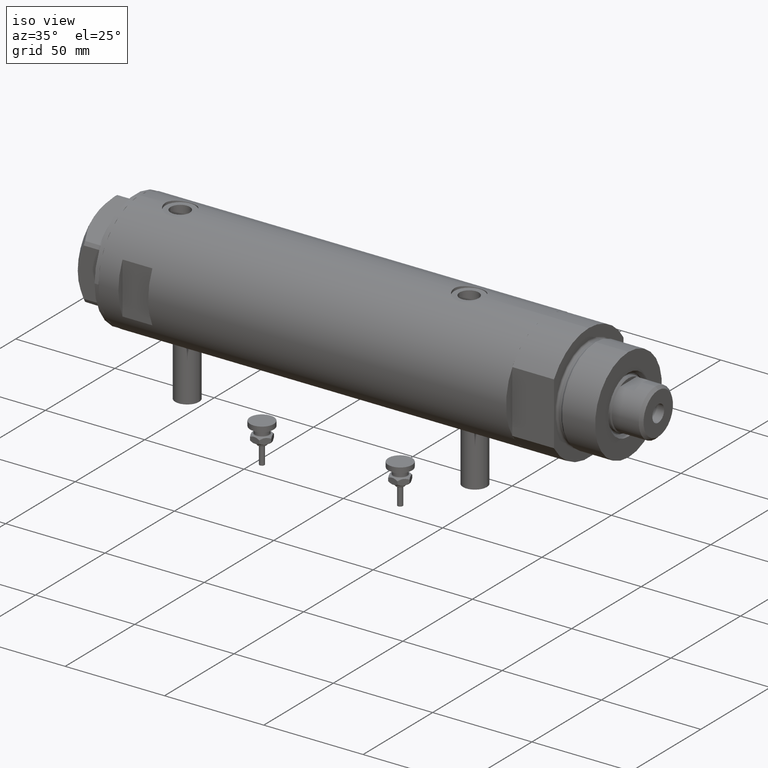
[diagram: clean part render]
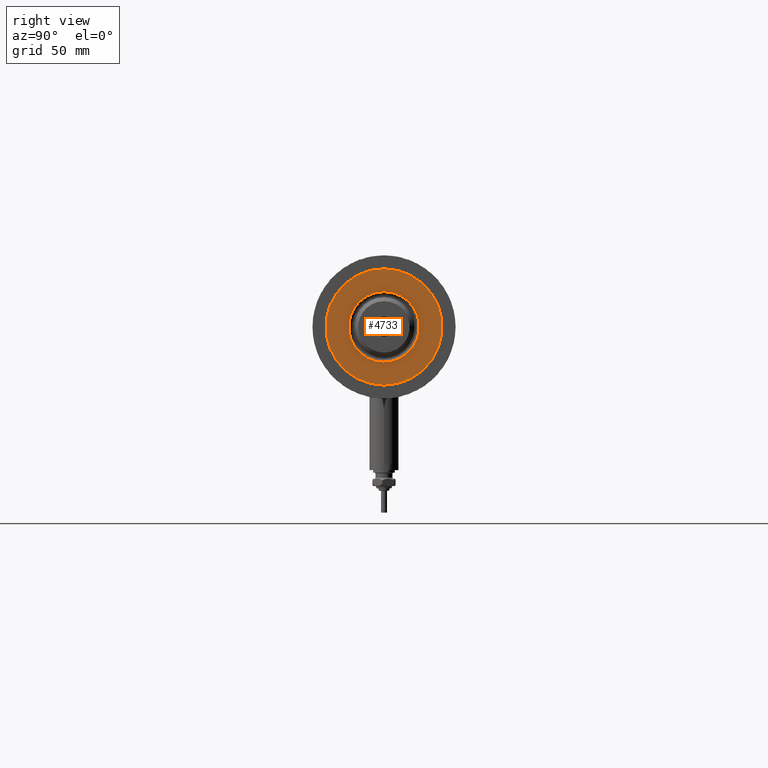
[diagram: tour spotlight — one face highlighted and labeled with its STEP entity id]
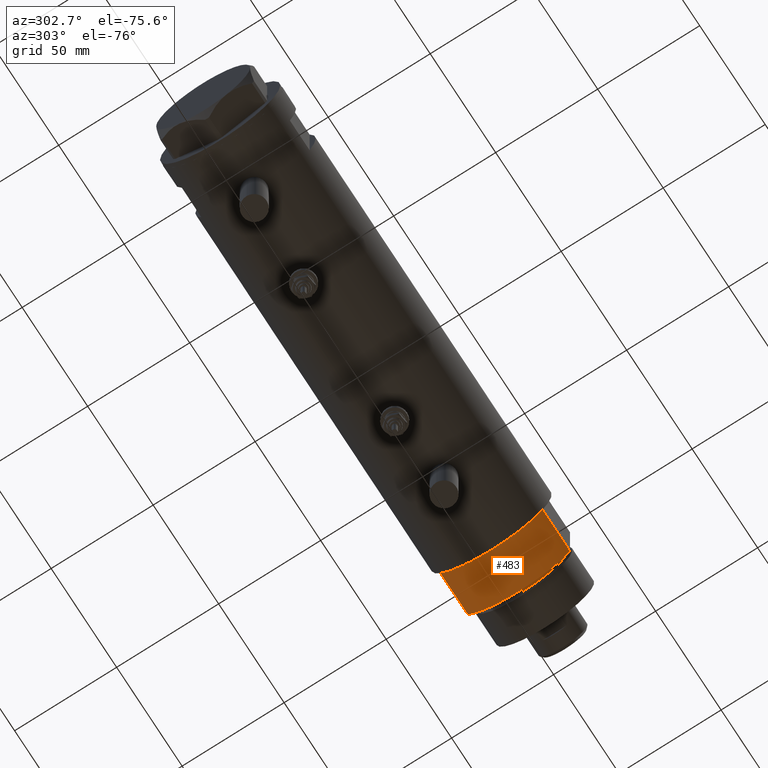
[diagram: tour spotlight — one face highlighted and labeled with its STEP entity id]
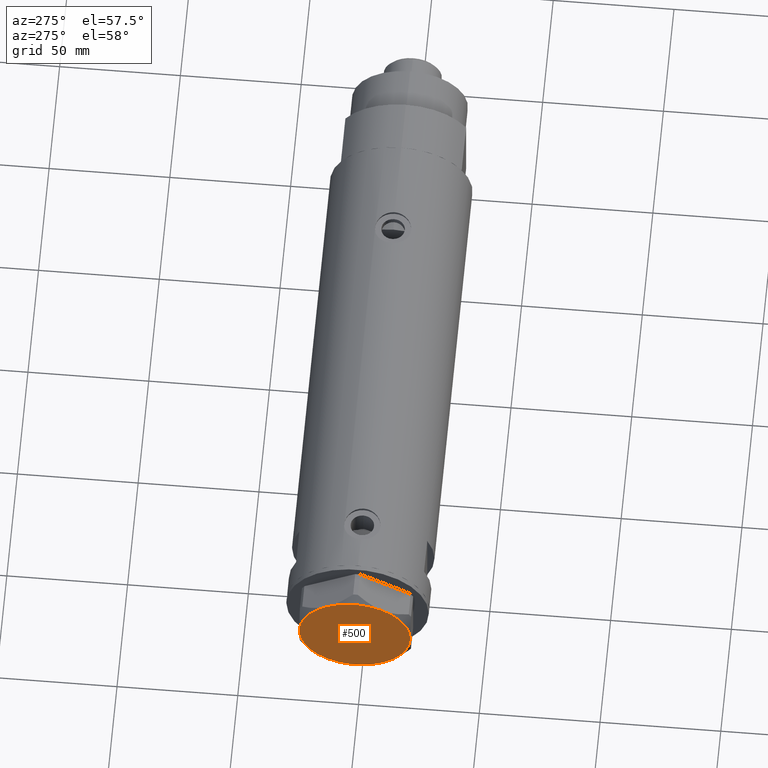
[diagram: tour spotlight — one face highlighted and labeled with its STEP entity id]
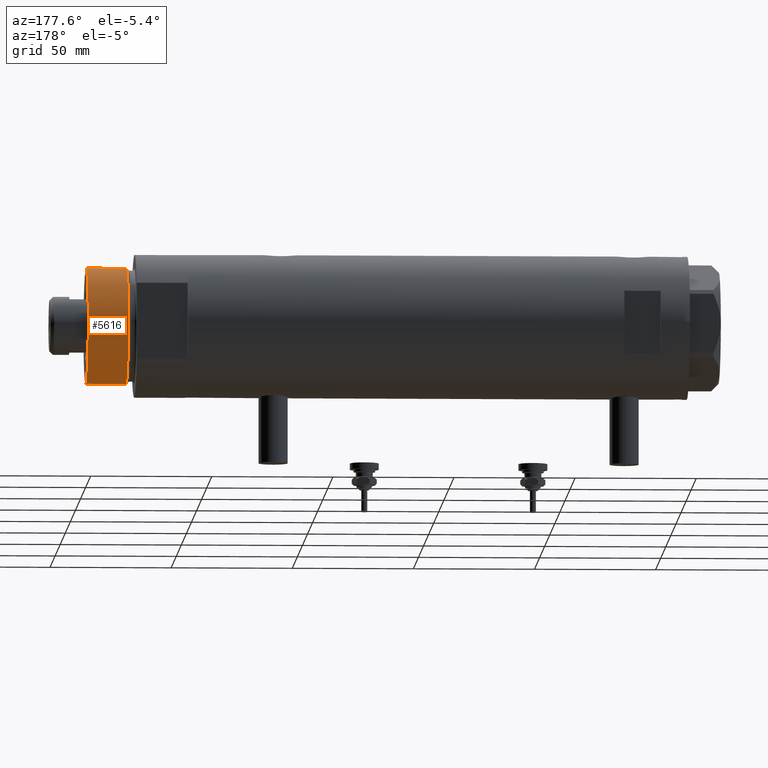
[diagram: tour spotlight — one face highlighted and labeled with its STEP entity id]
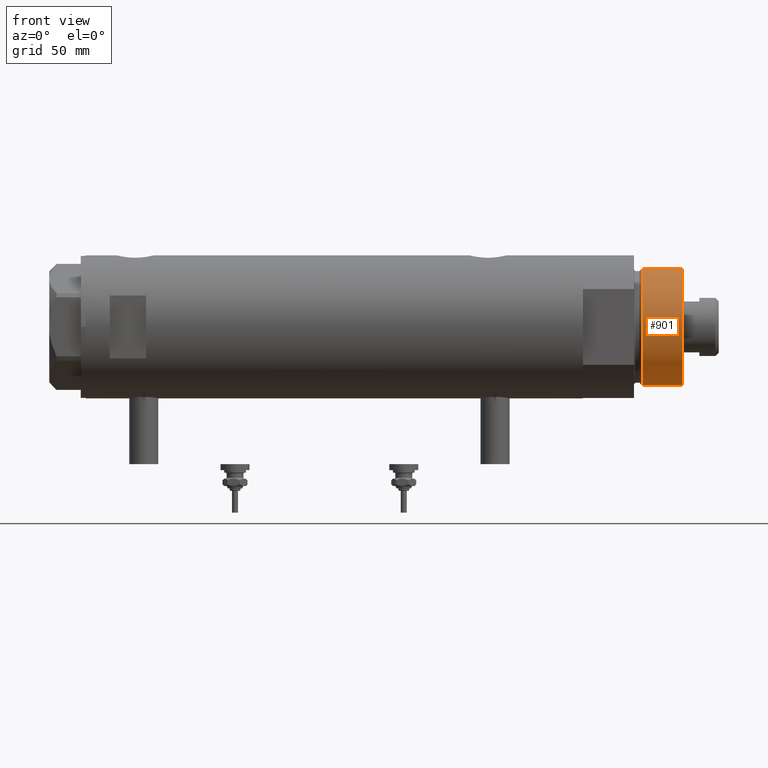
[diagram: tour spotlight — one face highlighted and labeled with its STEP entity id]
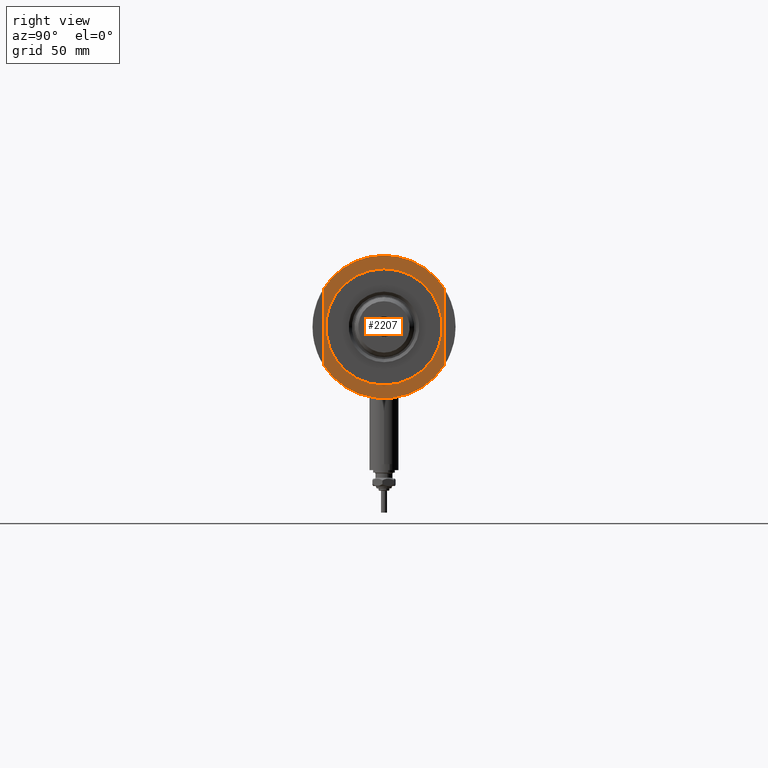
[diagram: tour spotlight — one face highlighted and labeled with its STEP entity id]
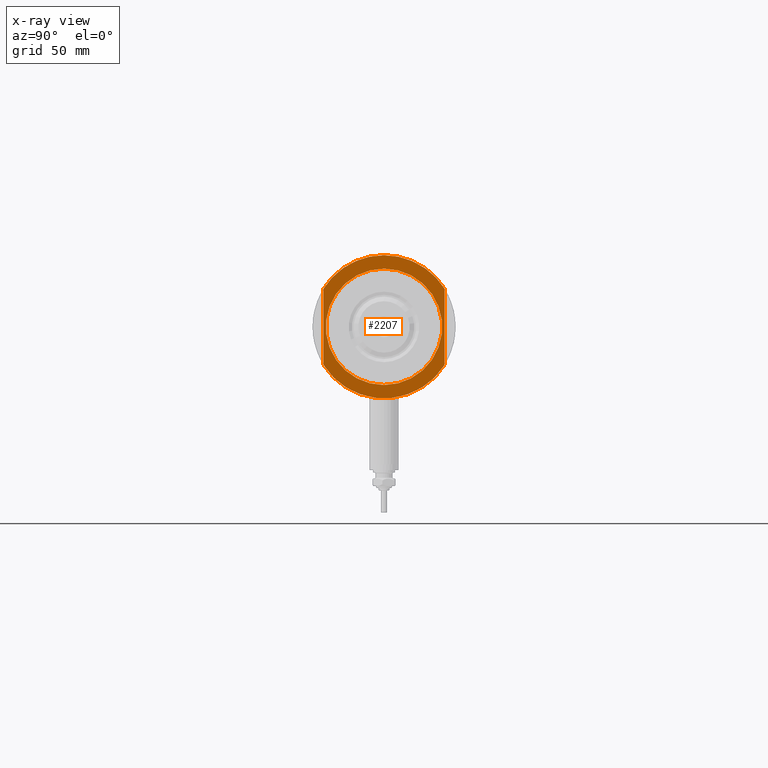
[diagram: x-ray of the same camera — body ghosted, this tour face saturated]
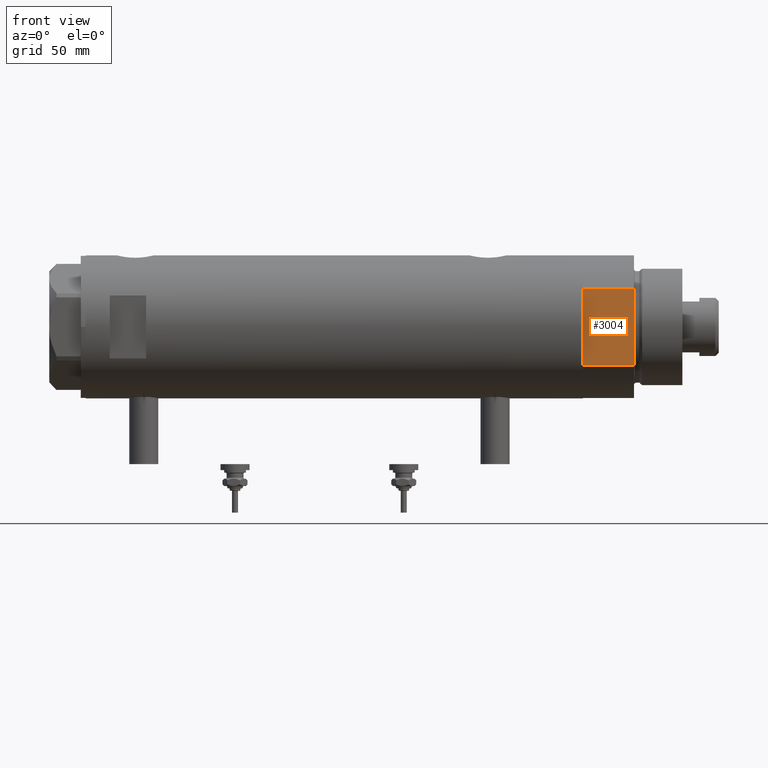
[diagram: tour spotlight — one face highlighted and labeled with its STEP entity id]
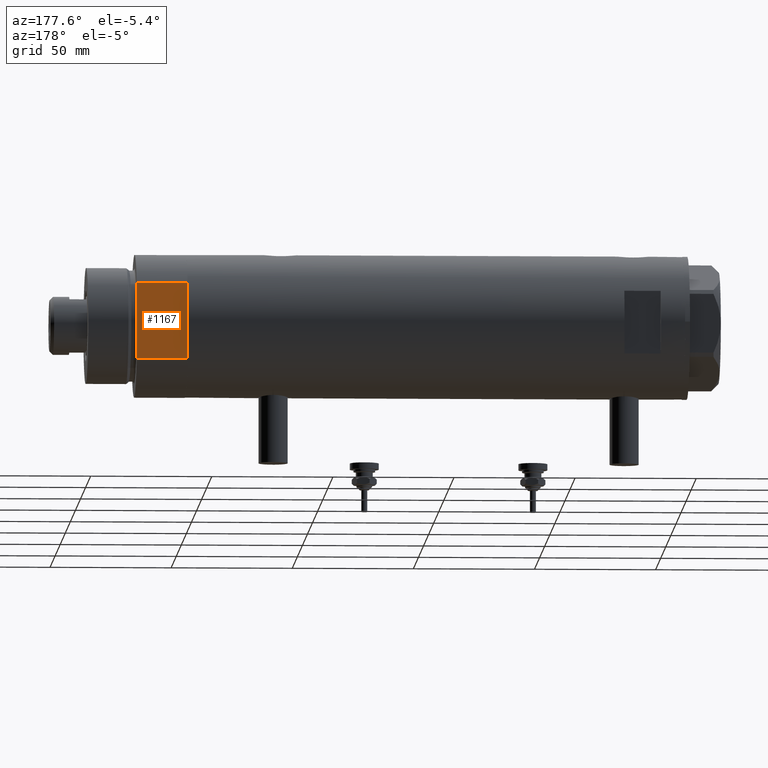
[diagram: tour spotlight — one face highlighted and labeled with its STEP entity id]
A machine part: a face-by-face anatomy tour. The part has 212 B-rep faces; the first image is the clean iso view, then the 8 largest visible faces are spotlighted one at a time (largest first), each with its STEP entity span.

Face 1 — right view, entity #4733. In plain terms, the highlighted planar face has unit normal (1, 0, -0).
Definition (entity closure, byte-faithful):
#137 = FACE_OUTER_BOUND ( 'NONE', #900, .T. ) ;
#231 = CARTESIAN_POINT ( 'NONE',  ( 14.54999999999997939, 0.000000000000000000, 41.00000000000000000 ) ) ;
#433 = CARTESIAN_POINT ( 'NONE',  ( 0.000000000000000000, 0.000000000000000000, 41.00000000000000000 ) ) ;
#721 = EDGE_CURVE ( 'NONE', #3402, #3069, #895, .T. ) ;
#787 = CARTESIAN_POINT ( 'NONE',  ( 0.000000000000000000, 0.000000000000000000, 41.00000000000000000 ) ) ;
#849 = AXIS2_PLACEMENT_3D ( 'NONE', #2028, #3356, #5190 ) ;
#886 = ORIENTED_EDGE ( 'NONE', *, *, #5399, .T. ) ;
#895 = CIRCLE ( 'NONE', #1371, 14.54999999999997939 ) ;
#900 = EDGE_LOOP ( 'NONE', ( #5566, #886 ) ) ;
#1030 = CARTESIAN_POINT ( 'NONE',  ( 0.000000000000000000, 0.000000000000000000, 41.00000000000000000 ) ) ;
#1311 = AXIS2_PLACEMENT_3D ( 'NONE', #787, #1346, #3486 ) ;
#1346 = DIRECTION ( 'NONE',  ( -0.000000000000000000, -0.000000000000000000, -1.000000000000000000 ) ) ;
#1371 = AXIS2_PLACEMENT_3D ( 'NONE', #433, #5426, #4446 ) ;
#1446 = DIRECTION ( 'NONE',  ( 1.000000000000000000, 0.000000000000000000, 0.000000000000000000 ) ) ;
#1588 = ORIENTED_EDGE ( 'NONE', *, *, #721, .T. ) ;
#1760 = VERTEX_POINT ( 'NONE', #3172 ) ;
#1881 = DIRECTION ( 'NONE',  ( 0.000000000000000000, 0.000000000000000000, 1.000000000000000000 ) ) ;
#1944 = PLANE ( 'NONE',  #849 ) ;
#2014 = DIRECTION ( 'NONE',  ( 0.000000000000000000, 0.000000000000000000, 1.000000000000000000 ) ) ;
#2028 = CARTESIAN_POINT ( 'NONE',  ( 0.000000000000000000, 0.000000000000000000, 41.00000000000000000 ) ) ;
#2602 = AXIS2_PLACEMENT_3D ( 'NONE', #1030, #1881, #1446 ) ;
#2736 = CARTESIAN_POINT ( 'NONE',  ( -14.54999999999997939, 1.781861092759396721E-15, 41.00000000000000000 ) ) ;
#2787 = EDGE_CURVE ( 'NONE', #1760, #5433, #3306, .T. ) ;
#3020 = CIRCLE ( 'NONE', #1311, 14.54999999999997939 ) ;
#3069 = VERTEX_POINT ( 'NONE', #231 ) ;
#3172 = CARTESIAN_POINT ( 'NONE',  ( -24.00000000000000355, 0.000000000000000000, 41.00000000000000000 ) ) ;
#3214 = EDGE_CURVE ( 'NONE', #3069, #3402, #3020, .T. ) ;
#3306 = CIRCLE ( 'NONE', #5790, 24.00000000000000355 ) ;
#3356 = DIRECTION ( 'NONE',  ( 0.000000000000000000, 0.000000000000000000, 1.000000000000000000 ) ) ;
#3370 = CARTESIAN_POINT ( 'NONE',  ( 0.000000000000000000, 0.000000000000000000, 41.00000000000000000 ) ) ;
#3400 = DIRECTION ( 'NONE',  ( 1.000000000000000000, 0.000000000000000000, 0.000000000000000000 ) ) ;
#3402 = VERTEX_POINT ( 'NONE', #2736 ) ;
#3414 = CARTESIAN_POINT ( 'NONE',  ( 24.00000000000000355, 2.939152317953648289E-15, 41.00000000000000000 ) ) ;
#3486 = DIRECTION ( 'NONE',  ( 1.000000000000000000, 0.000000000000000000, 0.000000000000000000 ) ) ;
#3604 = EDGE_LOOP ( 'NONE', ( #4656, #1588 ) ) ;
#4207 = FACE_BOUND ( 'NONE', #3604, .T. ) ;
#4446 = DIRECTION ( 'NONE',  ( 1.000000000000000000, 0.000000000000000000, 0.000000000000000000 ) ) ;
#4656 = ORIENTED_EDGE ( 'NONE', *, *, #3214, .T. ) ;
#4733 = ADVANCED_FACE ( 'NONE', ( #4207, #137 ), #1944, .T. ) ;
#5190 = DIRECTION ( 'NONE',  ( 1.000000000000000000, 0.000000000000000000, -0.000000000000000000 ) ) ;
#5207 = CIRCLE ( 'NONE', #2602, 24.00000000000000355 ) ;
#5399 = EDGE_CURVE ( 'NONE', #5433, #1760, #5207, .T. ) ;
#5426 = DIRECTION ( 'NONE',  ( -0.000000000000000000, -0.000000000000000000, -1.000000000000000000 ) ) ;
#5433 = VERTEX_POINT ( 'NONE', #3414 ) ;
#5566 = ORIENTED_EDGE ( 'NONE', *, *, #2787, .T. ) ;
#5790 = AXIS2_PLACEMENT_3D ( 'NONE', #3370, #2014, #3400 ) ;

Face 2 — auxiliary view, entity #483. In plain terms, the highlighted cylindrical surface (partial cylindrical patch) has radius 29.5 mm, axis along (-1, -0, 0).
Definition (entity closure, byte-faithful):
#160 = VECTOR ( 'NONE', #4064, 1000.000000000000000 ) ;
#483 = ADVANCED_FACE ( 'NONE', ( #4731 ), #2845, .T. ) ;
#1051 = LINE ( 'NONE', #3321, #160 ) ;
#1112 = CARTESIAN_POINT ( 'NONE',  ( 15.66045976336583401, 25.00000000000000000, 0.000000000000000000 ) ) ;
#1363 = CARTESIAN_POINT ( 'NONE',  ( 15.66045976336583045, -25.00000000000000000, 21.00000000000000355 ) ) ;
#1470 = AXIS2_PLACEMENT_3D ( 'NONE', #2033, #3852, #3421 ) ;
#1489 = EDGE_CURVE ( 'NONE', #5751, #1699, #1051, .T. ) ;
#1642 = CARTESIAN_POINT ( 'NONE',  ( 15.66045976336583045, 24.99999999999999645, 20.99999999999999645 ) ) ;
#1699 = VERTEX_POINT ( 'NONE', #1363 ) ;
#2033 = CARTESIAN_POINT ( 'NONE',  ( 0.000000000000000000, 0.000000000000000000, 0.000000000000000000 ) ) ;
#2047 = DIRECTION ( 'NONE',  ( -0.000000000000000000, -0.000000000000000000, 1.000000000000000000 ) ) ;
#2084 = ORIENTED_EDGE ( 'NONE', *, *, #5033, .T. ) ;
#2260 = CIRCLE ( 'NONE', #5908, 29.50000000000000355 ) ;
#2845 = CYLINDRICAL_SURFACE ( 'NONE', #5782, 29.50000000000000355 ) ;
#2849 = CARTESIAN_POINT ( 'NONE',  ( 15.66045976336583401, -25.00000000000000000, 0.000000000000000000 ) ) ;
#3089 = VERTEX_POINT ( 'NONE', #5189 ) ;
#3259 = DIRECTION ( 'NONE',  ( 1.000000000000000000, 0.000000000000000000, 0.000000000000000000 ) ) ;
#3321 = CARTESIAN_POINT ( 'NONE',  ( 15.66045976336583401, -25.00000000000000000, 0.000000000000000000 ) ) ;
#3324 = CARTESIAN_POINT ( 'NONE',  ( 0.000000000000000000, 0.000000000000000000, 21.00000000000000000 ) ) ;
#3383 = CIRCLE ( 'NONE', #1470, 29.50000000000000355 ) ;
#3421 = DIRECTION ( 'NONE',  ( 1.000000000000000000, 0.000000000000000000, 0.000000000000000000 ) ) ;
#3458 = ORIENTED_EDGE ( 'NONE', *, *, #3548, .T. ) ;
#3459 = ORIENTED_EDGE ( 'NONE', *, *, #1489, .F. ) ;
#3548 = EDGE_CURVE ( 'NONE', #3089, #4299, #5239, .T. ) ;
#3852 = DIRECTION ( 'NONE',  ( 0.000000000000000000, 0.000000000000000000, 1.000000000000000000 ) ) ;
#3855 = EDGE_LOOP ( 'NONE', ( #5416, #3459, #2084, #3458 ) ) ;
#4064 = DIRECTION ( 'NONE',  ( -0.000000000000000000, -0.000000000000000000, 1.000000000000000000 ) ) ;
#4299 = VERTEX_POINT ( 'NONE', #1642 ) ;
#4651 = VECTOR ( 'NONE', #2047, 1000.000000000000000 ) ;
#4695 = EDGE_CURVE ( 'NONE', #1699, #4299, #2260, .T. ) ;
#4700 = DIRECTION ( 'NONE',  ( -1.000000000000000000, 0.000000000000000000, 0.000000000000000000 ) ) ;
#4709 = DIRECTION ( 'NONE',  ( 0.000000000000000000, 0.000000000000000000, 1.000000000000000000 ) ) ;
#4731 = FACE_OUTER_BOUND ( 'NONE', #3855, .T. ) ;
#5033 = EDGE_CURVE ( 'NONE', #5751, #3089, #3383, .T. ) ;
#5152 = DIRECTION ( 'NONE',  ( -0.000000000000000000, -0.000000000000000000, -1.000000000000000000 ) ) ;
#5189 = CARTESIAN_POINT ( 'NONE',  ( 15.66045976336582690, 25.00000000000000000, 0.000000000000000000 ) ) ;
#5239 = LINE ( 'NONE', #1112, #4651 ) ;
#5416 = ORIENTED_EDGE ( 'NONE', *, *, #4695, .F. ) ;
#5692 = CARTESIAN_POINT ( 'NONE',  ( 0.000000000000000000, 0.000000000000000000, 21.00000000000000000 ) ) ;
#5751 = VERTEX_POINT ( 'NONE', #2849 ) ;
#5782 = AXIS2_PLACEMENT_3D ( 'NONE', #3324, #5152, #4700 ) ;
#5908 = AXIS2_PLACEMENT_3D ( 'NONE', #5692, #4709, #3259 ) ;

Face 3 — auxiliary view, entity #500. In plain terms, the highlighted planar face has unit normal (-1, -0, 0).
Definition (entity closure, byte-faithful):
#111 = VERTEX_POINT ( 'NONE', #1801 ) ;
#166 = CIRCLE ( 'NONE', #5295, 23.00000000000004619 ) ;
#186 = CIRCLE ( 'NONE', #4657, 23.00000000000004619 ) ;
#215 = VERTEX_POINT ( 'NONE', #1585 ) ;
#223 = DIRECTION ( 'NONE',  ( 1.000000000000000000, 0.000000000000000000, 0.000000000000000000 ) ) ;
#253 = CIRCLE ( 'NONE', #2609, 23.00000000000004619 ) ;
#413 = VERTEX_POINT ( 'NONE', #4206 ) ;
#417 = EDGE_CURVE ( 'NONE', #111, #413, #166, .T. ) ;
#449 = DIRECTION ( 'NONE',  ( 1.000000000000000000, 0.000000000000000000, 0.000000000000000000 ) ) ;
#456 = ORIENTED_EDGE ( 'NONE', *, *, #5569, .T. ) ;
#500 = ADVANCED_FACE ( 'NONE', ( #1113 ), #1172, .T. ) ;
#594 = EDGE_LOOP ( 'NONE', ( #456, #5328, #2248, #3937, #3190, #5482 ) ) ;
#729 = DIRECTION ( 'NONE',  ( 0.000000000000000000, 0.000000000000000000, 1.000000000000000000 ) ) ;
#863 = DIRECTION ( 'NONE',  ( 1.000000000000000000, 0.000000000000000000, 0.000000000000000000 ) ) ;
#1049 = VERTEX_POINT ( 'NONE', #4685 ) ;
#1053 = CARTESIAN_POINT ( 'NONE',  ( -11.49999999999990585, -19.91858428704219364, 13.00000000000000000 ) ) ;
#1113 = FACE_OUTER_BOUND ( 'NONE', #594, .T. ) ;
#1119 = AXIS2_PLACEMENT_3D ( 'NONE', #4475, #2108, #2592 ) ;
#1172 = PLANE ( 'NONE',  #4410 ) ;
#1193 = DIRECTION ( 'NONE',  ( 0.000000000000000000, 0.000000000000000000, 1.000000000000000000 ) ) ;
#1438 = EDGE_CURVE ( 'NONE', #3310, #1049, #253, .T. ) ;
#1585 = CARTESIAN_POINT ( 'NONE',  ( 22.99999999999995026, 2.373657066004705010E-13, 13.00000000000000000 ) ) ;
#1801 = CARTESIAN_POINT ( 'NONE',  ( 11.49999999999990408, 19.91858428704219364, 13.00000000000000000 ) ) ;
#2108 = DIRECTION ( 'NONE',  ( 0.000000000000000000, 0.000000000000000000, 1.000000000000000000 ) ) ;
#2135 = CIRCLE ( 'NONE', #1119, 23.00000000000004619 ) ;
#2248 = ORIENTED_EDGE ( 'NONE', *, *, #417, .T. ) ;
#2592 = DIRECTION ( 'NONE',  ( 1.000000000000000000, 0.000000000000000000, 0.000000000000000000 ) ) ;
#2609 = AXIS2_PLACEMENT_3D ( 'NONE', #5499, #3281, #449 ) ;
#3135 = DIRECTION ( 'NONE',  ( 0.000000000000000000, 0.000000000000000000, 1.000000000000000000 ) ) ;
#3190 = ORIENTED_EDGE ( 'NONE', *, *, #4449, .T. ) ;
#3281 = DIRECTION ( 'NONE',  ( 0.000000000000000000, 0.000000000000000000, 1.000000000000000000 ) ) ;
#3310 = VERTEX_POINT ( 'NONE', #1053 ) ;
#3415 = AXIS2_PLACEMENT_3D ( 'NONE', #3605, #3135, #3631 ) ;
#3453 = DIRECTION ( 'NONE',  ( 1.000000000000000000, 0.000000000000000000, -0.000000000000000000 ) ) ;
#3470 = EDGE_CURVE ( 'NONE', #413, #4013, #4647, .T. ) ;
#3605 = CARTESIAN_POINT ( 'NONE',  ( 0.000000000000000000, 0.000000000000000000, 13.00000000000000000 ) ) ;
#3621 = EDGE_CURVE ( 'NONE', #215, #111, #186, .T. ) ;
#3627 = DIRECTION ( 'NONE',  ( 1.000000000000000000, 0.000000000000000000, 0.000000000000000000 ) ) ;
#3631 = DIRECTION ( 'NONE',  ( 1.000000000000000000, 0.000000000000000000, 0.000000000000000000 ) ) ;
#3837 = CARTESIAN_POINT ( 'NONE',  ( 0.000000000000000000, 0.000000000000000000, 13.00000000000000000 ) ) ;
#3842 = CARTESIAN_POINT ( 'NONE',  ( 0.000000000000000000, 0.000000000000000000, 13.00000000000000000 ) ) ;
#3937 = ORIENTED_EDGE ( 'NONE', *, *, #3470, .T. ) ;
#4013 = VERTEX_POINT ( 'NONE', #4883 ) ;
#4206 = CARTESIAN_POINT ( 'NONE',  ( -11.50000000000004441, 19.91858428704211548, 13.00000000000000000 ) ) ;
#4266 = CARTESIAN_POINT ( 'NONE',  ( 0.000000000000000000, 0.000000000000000000, 13.00000000000000000 ) ) ;
#4410 = AXIS2_PLACEMENT_3D ( 'NONE', #4813, #729, #3453 ) ;
#4448 = CIRCLE ( 'NONE', #3415, 23.00000000000004619 ) ;
#4449 = EDGE_CURVE ( 'NONE', #4013, #3310, #4448, .T. ) ;
#4475 = CARTESIAN_POINT ( 'NONE',  ( 0.000000000000000000, 0.000000000000000000, 13.00000000000000000 ) ) ;
#4647 = CIRCLE ( 'NONE', #5232, 23.00000000000004619 ) ;
#4657 = AXIS2_PLACEMENT_3D ( 'NONE', #3837, #5684, #863 ) ;
#4685 = CARTESIAN_POINT ( 'NONE',  ( 11.50000000000018296, -19.91858428704203732, 13.00000000000000000 ) ) ;
#4813 = CARTESIAN_POINT ( 'NONE',  ( 0.000000000000000000, 0.000000000000000000, 13.00000000000000000 ) ) ;
#4883 = CARTESIAN_POINT ( 'NONE',  ( -23.00000000000004619, -8.112498833180673323E-14, 13.00000000000000000 ) ) ;
#5232 = AXIS2_PLACEMENT_3D ( 'NONE', #4266, #1193, #223 ) ;
#5295 = AXIS2_PLACEMENT_3D ( 'NONE', #3842, #5863, #3627 ) ;
#5328 = ORIENTED_EDGE ( 'NONE', *, *, #3621, .T. ) ;
#5482 = ORIENTED_EDGE ( 'NONE', *, *, #1438, .T. ) ;
#5499 = CARTESIAN_POINT ( 'NONE',  ( 0.000000000000000000, 0.000000000000000000, 13.00000000000000000 ) ) ;
#5569 = EDGE_CURVE ( 'NONE', #1049, #215, #2135, .T. ) ;
#5684 = DIRECTION ( 'NONE',  ( 0.000000000000000000, 0.000000000000000000, 1.000000000000000000 ) ) ;
#5863 = DIRECTION ( 'NONE',  ( 0.000000000000000000, 0.000000000000000000, 1.000000000000000000 ) ) ;

Face 4 — auxiliary view, entity #5616. In plain terms, the highlighted cylindrical surface (partial cylindrical patch) has radius 24 mm, axis along (-1, -0, 0).
Definition (entity closure, byte-faithful):
#27 = LINE ( 'NONE', #3661, #2192 ) ;
#56 = AXIS2_PLACEMENT_3D ( 'NONE', #3490, #3920, #4441 ) ;
#323 = CARTESIAN_POINT ( 'NONE',  ( 24.00000000000000355, 2.939152317953648289E-15, 24.37384048104054557 ) ) ;
#392 = EDGE_CURVE ( 'NONE', #5433, #3717, #4780, .T. ) ;
#1030 = CARTESIAN_POINT ( 'NONE',  ( 0.000000000000000000, 0.000000000000000000, 41.00000000000000000 ) ) ;
#1446 = DIRECTION ( 'NONE',  ( 1.000000000000000000, 0.000000000000000000, 0.000000000000000000 ) ) ;
#1528 = EDGE_LOOP ( 'NONE', ( #5378, #1871, #3008, #2579 ) ) ;
#1760 = VERTEX_POINT ( 'NONE', #3172 ) ;
#1871 = ORIENTED_EDGE ( 'NONE', *, *, #392, .T. ) ;
#1881 = DIRECTION ( 'NONE',  ( 0.000000000000000000, 0.000000000000000000, 1.000000000000000000 ) ) ;
#1961 = AXIS2_PLACEMENT_3D ( 'NONE', #2615, #4848, #3893 ) ;
#2192 = VECTOR ( 'NONE', #3253, 1000.000000000000000 ) ;
#2228 = CYLINDRICAL_SURFACE ( 'NONE', #56, 24.00000000000000355 ) ;
#2239 = EDGE_CURVE ( 'NONE', #3717, #3328, #4033, .T. ) ;
#2579 = ORIENTED_EDGE ( 'NONE', *, *, #5761, .F. ) ;
#2602 = AXIS2_PLACEMENT_3D ( 'NONE', #1030, #1881, #1446 ) ;
#2615 = CARTESIAN_POINT ( 'NONE',  ( 0.000000000000000000, 0.000000000000000000, 24.37384048104054557 ) ) ;
#2808 = CARTESIAN_POINT ( 'NONE',  ( -24.00000000000000355, 0.000000000000000000, 24.37384048104054557 ) ) ;
#3008 = ORIENTED_EDGE ( 'NONE', *, *, #2239, .T. ) ;
#3172 = CARTESIAN_POINT ( 'NONE',  ( -24.00000000000000355, 0.000000000000000000, 41.00000000000000000 ) ) ;
#3253 = DIRECTION ( 'NONE',  ( -0.000000000000000000, -0.000000000000000000, -1.000000000000000000 ) ) ;
#3328 = VERTEX_POINT ( 'NONE', #2808 ) ;
#3414 = CARTESIAN_POINT ( 'NONE',  ( 24.00000000000000355, 2.939152317953648289E-15, 41.00000000000000000 ) ) ;
#3446 = CARTESIAN_POINT ( 'NONE',  ( 24.00000000000000355, 2.939152317953648289E-15, 41.00000000000000000 ) ) ;
#3490 = CARTESIAN_POINT ( 'NONE',  ( 0.000000000000000000, 0.000000000000000000, 41.00000000000000000 ) ) ;
#3661 = CARTESIAN_POINT ( 'NONE',  ( -24.00000000000000355, 0.000000000000000000, 41.00000000000000000 ) ) ;
#3717 = VERTEX_POINT ( 'NONE', #323 ) ;
#3893 = DIRECTION ( 'NONE',  ( 1.000000000000000000, 0.000000000000000000, 0.000000000000000000 ) ) ;
#3920 = DIRECTION ( 'NONE',  ( -0.000000000000000000, -0.000000000000000000, -1.000000000000000000 ) ) ;
#4033 = CIRCLE ( 'NONE', #1961, 24.00000000000000355 ) ;
#4407 = FACE_OUTER_BOUND ( 'NONE', #1528, .T. ) ;
#4441 = DIRECTION ( 'NONE',  ( -1.000000000000000000, 0.000000000000000000, 0.000000000000000000 ) ) ;
#4780 = LINE ( 'NONE', #3446, #4826 ) ;
#4826 = VECTOR ( 'NONE', #5626, 1000.000000000000000 ) ;
#4848 = DIRECTION ( 'NONE',  ( -0.000000000000000000, -0.000000000000000000, 1.000000000000000000 ) ) ;
#5207 = CIRCLE ( 'NONE', #2602, 24.00000000000000355 ) ;
#5378 = ORIENTED_EDGE ( 'NONE', *, *, #5399, .F. ) ;
#5399 = EDGE_CURVE ( 'NONE', #5433, #1760, #5207, .T. ) ;
#5433 = VERTEX_POINT ( 'NONE', #3414 ) ;
#5616 = ADVANCED_FACE ( 'NONE', ( #4407 ), #2228, .T. ) ;
#5626 = DIRECTION ( 'NONE',  ( -0.000000000000000000, -0.000000000000000000, -1.000000000000000000 ) ) ;
#5761 = EDGE_CURVE ( 'NONE', #1760, #3328, #27, .T. ) ;

Face 5 — front view, entity #901. In plain terms, the highlighted cylindrical surface (partial cylindrical patch) has radius 24 mm, axis along (-1, -0, 0).
Definition (entity closure, byte-faithful):
#27 = LINE ( 'NONE', #3661, #2192 ) ;
#323 = CARTESIAN_POINT ( 'NONE',  ( 24.00000000000000355, 2.939152317953648289E-15, 24.37384048104054557 ) ) ;
#392 = EDGE_CURVE ( 'NONE', #5433, #3717, #4780, .T. ) ;
#759 = AXIS2_PLACEMENT_3D ( 'NONE', #3901, #1624, #4282 ) ;
#901 = ADVANCED_FACE ( 'NONE', ( #2263 ), #5899, .T. ) ;
#1624 = DIRECTION ( 'NONE',  ( -0.000000000000000000, -0.000000000000000000, 1.000000000000000000 ) ) ;
#1760 = VERTEX_POINT ( 'NONE', #3172 ) ;
#1929 = ORIENTED_EDGE ( 'NONE', *, *, #4960, .T. ) ;
#2014 = DIRECTION ( 'NONE',  ( 0.000000000000000000, 0.000000000000000000, 1.000000000000000000 ) ) ;
#2192 = VECTOR ( 'NONE', #3253, 1000.000000000000000 ) ;
#2263 = FACE_OUTER_BOUND ( 'NONE', #5275, .T. ) ;
#2540 = ORIENTED_EDGE ( 'NONE', *, *, #392, .F. ) ;
#2659 = ORIENTED_EDGE ( 'NONE', *, *, #2787, .F. ) ;
#2707 = CARTESIAN_POINT ( 'NONE',  ( 0.000000000000000000, 0.000000000000000000, 41.00000000000000000 ) ) ;
#2787 = EDGE_CURVE ( 'NONE', #1760, #5433, #3306, .T. ) ;
#2808 = CARTESIAN_POINT ( 'NONE',  ( -24.00000000000000355, 0.000000000000000000, 24.37384048104054557 ) ) ;
#3159 = DIRECTION ( 'NONE',  ( -0.000000000000000000, -0.000000000000000000, -1.000000000000000000 ) ) ;
#3172 = CARTESIAN_POINT ( 'NONE',  ( -24.00000000000000355, 0.000000000000000000, 41.00000000000000000 ) ) ;
#3253 = DIRECTION ( 'NONE',  ( -0.000000000000000000, -0.000000000000000000, -1.000000000000000000 ) ) ;
#3306 = CIRCLE ( 'NONE', #5790, 24.00000000000000355 ) ;
#3328 = VERTEX_POINT ( 'NONE', #2808 ) ;
#3370 = CARTESIAN_POINT ( 'NONE',  ( 0.000000000000000000, 0.000000000000000000, 41.00000000000000000 ) ) ;
#3400 = DIRECTION ( 'NONE',  ( 1.000000000000000000, 0.000000000000000000, 0.000000000000000000 ) ) ;
#3414 = CARTESIAN_POINT ( 'NONE',  ( 24.00000000000000355, 2.939152317953648289E-15, 41.00000000000000000 ) ) ;
#3446 = CARTESIAN_POINT ( 'NONE',  ( 24.00000000000000355, 2.939152317953648289E-15, 41.00000000000000000 ) ) ;
#3661 = CARTESIAN_POINT ( 'NONE',  ( -24.00000000000000355, 0.000000000000000000, 41.00000000000000000 ) ) ;
#3717 = VERTEX_POINT ( 'NONE', #323 ) ;
#3901 = CARTESIAN_POINT ( 'NONE',  ( 0.000000000000000000, 0.000000000000000000, 24.37384048104054557 ) ) ;
#4068 = DIRECTION ( 'NONE',  ( -1.000000000000000000, 0.000000000000000000, 0.000000000000000000 ) ) ;
#4271 = CIRCLE ( 'NONE', #759, 24.00000000000000355 ) ;
#4282 = DIRECTION ( 'NONE',  ( 1.000000000000000000, 0.000000000000000000, 0.000000000000000000 ) ) ;
#4780 = LINE ( 'NONE', #3446, #4826 ) ;
#4818 = AXIS2_PLACEMENT_3D ( 'NONE', #2707, #3159, #4068 ) ;
#4826 = VECTOR ( 'NONE', #5626, 1000.000000000000000 ) ;
#4960 = EDGE_CURVE ( 'NONE', #3328, #3717, #4271, .T. ) ;
#5275 = EDGE_LOOP ( 'NONE', ( #2540, #2659, #5902, #1929 ) ) ;
#5433 = VERTEX_POINT ( 'NONE', #3414 ) ;
#5626 = DIRECTION ( 'NONE',  ( -0.000000000000000000, -0.000000000000000000, -1.000000000000000000 ) ) ;
#5761 = EDGE_CURVE ( 'NONE', #1760, #3328, #27, .T. ) ;
#5790 = AXIS2_PLACEMENT_3D ( 'NONE', #3370, #2014, #3400 ) ;
#5899 = CYLINDRICAL_SURFACE ( 'NONE', #4818, 24.00000000000000355 ) ;
#5902 = ORIENTED_EDGE ( 'NONE', *, *, #5761, .T. ) ;

Face 6 — right view, entity #2207. An x-ray twin of the same camera follows (body ghosted, this face saturated) — the face is partly hidden behind the body. In plain terms, the highlighted planar face has unit normal (1, 0, -0).
Definition (entity closure, byte-faithful):
#183 = EDGE_CURVE ( 'NONE', #4353, #2262, #3394, .T. ) ;
#332 = DIRECTION ( 'NONE',  ( -0.000000000000000000, -0.000000000000000000, -1.000000000000000000 ) ) ;
#370 = CARTESIAN_POINT ( 'NONE',  ( -15.66045976336583045, 24.99999999999999645, 21.00000000000000355 ) ) ;
#478 = CARTESIAN_POINT ( 'NONE',  ( 0.000000000000000000, 0.000000000000000000, 21.00000000000000000 ) ) ;
#614 = PLANE ( 'NONE',  #1495 ) ;
#661 = DIRECTION ( 'NONE',  ( -1.000000000000000000, -0.000000000000000000, -0.000000000000000000 ) ) ;
#821 = LINE ( 'NONE', #2144, #3557 ) ;
#932 = DIRECTION ( 'NONE',  ( 0.000000000000000000, 0.000000000000000000, 1.000000000000000000 ) ) ;
#947 = VERTEX_POINT ( 'NONE', #1822 ) ;
#1024 = FACE_OUTER_BOUND ( 'NONE', #2097, .T. ) ;
#1363 = CARTESIAN_POINT ( 'NONE',  ( 15.66045976336583045, -25.00000000000000000, 21.00000000000000355 ) ) ;
#1495 = AXIS2_PLACEMENT_3D ( 'NONE', #1536, #932, #3664 ) ;
#1536 = CARTESIAN_POINT ( 'NONE',  ( 0.000000000000000000, 0.000000000000000000, 21.00000000000000000 ) ) ;
#1642 = CARTESIAN_POINT ( 'NONE',  ( 15.66045976336583045, 24.99999999999999645, 20.99999999999999645 ) ) ;
#1689 = DIRECTION ( 'NONE',  ( 1.000000000000000000, 0.000000000000000000, 0.000000000000000000 ) ) ;
#1699 = VERTEX_POINT ( 'NONE', #1363 ) ;
#1822 = CARTESIAN_POINT ( 'NONE',  ( 24.00000000000000000, 0.000000000000000000, 21.00000000000000000 ) ) ;
#1835 = DIRECTION ( 'NONE',  ( 0.000000000000000000, 0.000000000000000000, 1.000000000000000000 ) ) ;
#1916 = ORIENTED_EDGE ( 'NONE', *, *, #4695, .T. ) ;
#1981 = ORIENTED_EDGE ( 'NONE', *, *, #2701, .T. ) ;
#2097 = EDGE_LOOP ( 'NONE', ( #2530, #1916, #5889, #2124, #1981 ) ) ;
#2124 = ORIENTED_EDGE ( 'NONE', *, *, #183, .T. ) ;
#2127 = DIRECTION ( 'NONE',  ( 0.000000000000000000, 0.000000000000000000, 1.000000000000000000 ) ) ;
#2144 = CARTESIAN_POINT ( 'NONE',  ( -15.66045976336583401, 25.00000000000000000, 21.00000000000000000 ) ) ;
#2207 = ADVANCED_FACE ( 'NONE', ( #5126, #1024 ), #614, .T. ) ;
#2260 = CIRCLE ( 'NONE', #5908, 29.50000000000000355 ) ;
#2262 = VERTEX_POINT ( 'NONE', #3434 ) ;
#2530 = ORIENTED_EDGE ( 'NONE', *, *, #4955, .F. ) ;
#2548 = LINE ( 'NONE', #3395, #5045 ) ;
#2614 = CIRCLE ( 'NONE', #4139, 24.00000000000000000 ) ;
#2616 = CARTESIAN_POINT ( 'NONE',  ( 0.000000000000000000, 0.000000000000000000, 21.00000000000000000 ) ) ;
#2701 = EDGE_CURVE ( 'NONE', #2262, #5676, #5892, .T. ) ;
#2930 = CARTESIAN_POINT ( 'NONE',  ( 0.000000000000000000, 0.000000000000000000, 21.00000000000000000 ) ) ;
#3259 = DIRECTION ( 'NONE',  ( 1.000000000000000000, 0.000000000000000000, 0.000000000000000000 ) ) ;
#3287 = CARTESIAN_POINT ( 'NONE',  ( -24.00000000000000000, 2.939152317953647894E-15, 21.00000000000000000 ) ) ;
#3288 = ORIENTED_EDGE ( 'NONE', *, *, #4213, .T. ) ;
#3392 = CARTESIAN_POINT ( 'NONE',  ( 0.000000000000000000, 0.000000000000000000, 21.00000000000000000 ) ) ;
#3394 = CIRCLE ( 'NONE', #4913, 29.50000000000000355 ) ;
#3395 = CARTESIAN_POINT ( 'NONE',  ( -15.66045976336583401, -25.00000000000000000, 21.00000000000000000 ) ) ;
#3434 = CARTESIAN_POINT ( 'NONE',  ( -29.50000000000000355, 0.000000000000000000, 21.00000000000000000 ) ) ;
#3557 = VECTOR ( 'NONE', #4943, 1000.000000000000000 ) ;
#3664 = DIRECTION ( 'NONE',  ( 1.000000000000000000, 0.000000000000000000, -0.000000000000000000 ) ) ;
#3694 = DIRECTION ( 'NONE',  ( 1.000000000000000000, 0.000000000000000000, 0.000000000000000000 ) ) ;
#3949 = CARTESIAN_POINT ( 'NONE',  ( -15.66045976336583045, -24.99999999999999645, 20.99999999999999645 ) ) ;
#3997 = ORIENTED_EDGE ( 'NONE', *, *, #5631, .T. ) ;
#4139 = AXIS2_PLACEMENT_3D ( 'NONE', #2616, #332, #5775 ) ;
#4213 = EDGE_CURVE ( 'NONE', #947, #5762, #4268, .T. ) ;
#4268 = CIRCLE ( 'NONE', #5428, 24.00000000000000000 ) ;
#4281 = DIRECTION ( 'NONE',  ( -0.000000000000000000, -0.000000000000000000, -1.000000000000000000 ) ) ;
#4299 = VERTEX_POINT ( 'NONE', #1642 ) ;
#4346 = AXIS2_PLACEMENT_3D ( 'NONE', #2930, #2127, #1689 ) ;
#4353 = VERTEX_POINT ( 'NONE', #370 ) ;
#4695 = EDGE_CURVE ( 'NONE', #1699, #4299, #2260, .T. ) ;
#4709 = DIRECTION ( 'NONE',  ( 0.000000000000000000, 0.000000000000000000, 1.000000000000000000 ) ) ;
#4821 = EDGE_LOOP ( 'NONE', ( #3288, #3997 ) ) ;
#4913 = AXIS2_PLACEMENT_3D ( 'NONE', #478, #1835, #3694 ) ;
#4943 = DIRECTION ( 'NONE',  ( 1.000000000000000000, 0.000000000000000000, 0.000000000000000000 ) ) ;
#4955 = EDGE_CURVE ( 'NONE', #1699, #5676, #2548, .T. ) ;
#5045 = VECTOR ( 'NONE', #661, 1000.000000000000000 ) ;
#5126 = FACE_BOUND ( 'NONE', #4821, .T. ) ;
#5135 = DIRECTION ( 'NONE',  ( 1.000000000000000000, 0.000000000000000000, 0.000000000000000000 ) ) ;
#5138 = EDGE_CURVE ( 'NONE', #4353, #4299, #821, .T. ) ;
#5428 = AXIS2_PLACEMENT_3D ( 'NONE', #3392, #4281, #5135 ) ;
#5631 = EDGE_CURVE ( 'NONE', #5762, #947, #2614, .T. ) ;
#5676 = VERTEX_POINT ( 'NONE', #3949 ) ;
#5692 = CARTESIAN_POINT ( 'NONE',  ( 0.000000000000000000, 0.000000000000000000, 21.00000000000000000 ) ) ;
#5762 = VERTEX_POINT ( 'NONE', #3287 ) ;
#5775 = DIRECTION ( 'NONE',  ( 1.000000000000000000, 0.000000000000000000, 0.000000000000000000 ) ) ;
#5889 = ORIENTED_EDGE ( 'NONE', *, *, #5138, .F. ) ;
#5892 = CIRCLE ( 'NONE', #4346, 29.50000000000000355 ) ;
#5908 = AXIS2_PLACEMENT_3D ( 'NONE', #5692, #4709, #3259 ) ;

Face 7 — front view, entity #3004. In plain terms, the highlighted planar face has unit normal (-0, 1, 0).
Definition (entity closure, byte-faithful):
#160 = VECTOR ( 'NONE', #4064, 1000.000000000000000 ) ;
#275 = EDGE_LOOP ( 'NONE', ( #2101, #2932, #5039, #3125, #2060, #1993 ) ) ;
#438 = LINE ( 'NONE', #1705, #5772 ) ;
#583 = EDGE_CURVE ( 'NONE', #5751, #1278, #1617, .T. ) ;
#661 = DIRECTION ( 'NONE',  ( -1.000000000000000000, -0.000000000000000000, -0.000000000000000000 ) ) ;
#666 = EDGE_CURVE ( 'NONE', #1278, #3805, #4905, .T. ) ;
#735 = VECTOR ( 'NONE', #851, 1000.000000000000000 ) ;
#791 = DIRECTION ( 'NONE',  ( -1.000000000000000000, -0.000000000000000000, -0.000000000000000000 ) ) ;
#823 = DIRECTION ( 'NONE',  ( -0.000000000000000000, -0.000000000000000000, 1.000000000000000000 ) ) ;
#851 = DIRECTION ( 'NONE',  ( -1.000000000000000000, -0.000000000000000000, -0.000000000000000000 ) ) ;
#934 = CARTESIAN_POINT ( 'NONE',  ( -15.66045976336583401, -25.00000000000000000, 0.000000000000000000 ) ) ;
#1051 = LINE ( 'NONE', #3321, #160 ) ;
#1117 = EDGE_CURVE ( 'NONE', #2653, #5676, #438, .T. ) ;
#1209 = AXIS2_PLACEMENT_3D ( 'NONE', #2212, #4014, #3767 ) ;
#1278 = VERTEX_POINT ( 'NONE', #5345 ) ;
#1363 = CARTESIAN_POINT ( 'NONE',  ( 15.66045976336583045, -25.00000000000000000, 21.00000000000000355 ) ) ;
#1489 = EDGE_CURVE ( 'NONE', #5751, #1699, #1051, .T. ) ;
#1617 = LINE ( 'NONE', #2077, #2697 ) ;
#1699 = VERTEX_POINT ( 'NONE', #1363 ) ;
#1705 = CARTESIAN_POINT ( 'NONE',  ( -15.66045976336583401, -25.00000000000000000, 0.000000000000000000 ) ) ;
#1993 = ORIENTED_EDGE ( 'NONE', *, *, #1489, .T. ) ;
#2060 = ORIENTED_EDGE ( 'NONE', *, *, #583, .F. ) ;
#2077 = CARTESIAN_POINT ( 'NONE',  ( -15.66045976336583401, -25.00000000000000000, 0.000000000000000000 ) ) ;
#2101 = ORIENTED_EDGE ( 'NONE', *, *, #4955, .T. ) ;
#2212 = CARTESIAN_POINT ( 'NONE',  ( -15.66045976336583401, -25.00000000000000000, 0.000000000000000000 ) ) ;
#2548 = LINE ( 'NONE', #3395, #5045 ) ;
#2653 = VERTEX_POINT ( 'NONE', #3689 ) ;
#2697 = VECTOR ( 'NONE', #5270, 1000.000000000000000 ) ;
#2849 = CARTESIAN_POINT ( 'NONE',  ( 15.66045976336583401, -25.00000000000000000, 0.000000000000000000 ) ) ;
#2883 = PLANE ( 'NONE',  #1209 ) ;
#2932 = ORIENTED_EDGE ( 'NONE', *, *, #1117, .F. ) ;
#3004 = ADVANCED_FACE ( 'NONE', ( #4205 ), #2883, .F. ) ;
#3102 = LINE ( 'NONE', #4038, #4427 ) ;
#3125 = ORIENTED_EDGE ( 'NONE', *, *, #666, .F. ) ;
#3321 = CARTESIAN_POINT ( 'NONE',  ( 15.66045976336583401, -25.00000000000000000, 0.000000000000000000 ) ) ;
#3395 = CARTESIAN_POINT ( 'NONE',  ( -15.66045976336583401, -25.00000000000000000, 21.00000000000000000 ) ) ;
#3687 = CARTESIAN_POINT ( 'NONE',  ( -7.141428428542853091, -25.00000000000000000, 0.000000000000000000 ) ) ;
#3689 = CARTESIAN_POINT ( 'NONE',  ( -15.66045976336582690, -25.00000000000000000, 0.000000000000000000 ) ) ;
#3767 = DIRECTION ( 'NONE',  ( 0.000000000000000000, -0.000000000000000000, 1.000000000000000000 ) ) ;
#3805 = VERTEX_POINT ( 'NONE', #3687 ) ;
#3949 = CARTESIAN_POINT ( 'NONE',  ( -15.66045976336583045, -24.99999999999999645, 20.99999999999999645 ) ) ;
#4014 = DIRECTION ( 'NONE',  ( -0.000000000000000000, 1.000000000000000000, 0.000000000000000000 ) ) ;
#4038 = CARTESIAN_POINT ( 'NONE',  ( -15.66045976336583401, -25.00000000000000000, 0.000000000000000000 ) ) ;
#4064 = DIRECTION ( 'NONE',  ( -0.000000000000000000, -0.000000000000000000, 1.000000000000000000 ) ) ;
#4205 = FACE_OUTER_BOUND ( 'NONE', #275, .T. ) ;
#4427 = VECTOR ( 'NONE', #791, 1000.000000000000000 ) ;
#4905 = LINE ( 'NONE', #934, #735 ) ;
#4955 = EDGE_CURVE ( 'NONE', #1699, #5676, #2548, .T. ) ;
#5039 = ORIENTED_EDGE ( 'NONE', *, *, #5579, .F. ) ;
#5045 = VECTOR ( 'NONE', #661, 1000.000000000000000 ) ;
#5270 = DIRECTION ( 'NONE',  ( -1.000000000000000000, -0.000000000000000000, -0.000000000000000000 ) ) ;
#5345 = CARTESIAN_POINT ( 'NONE',  ( 7.141428428542853091, -25.00000000000000000, 0.000000000000000000 ) ) ;
#5579 = EDGE_CURVE ( 'NONE', #3805, #2653, #3102, .T. ) ;
#5676 = VERTEX_POINT ( 'NONE', #3949 ) ;
#5751 = VERTEX_POINT ( 'NONE', #2849 ) ;
#5772 = VECTOR ( 'NONE', #823, 1000.000000000000000 ) ;

Face 8 — auxiliary view, entity #1167. In plain terms, the highlighted planar face has unit normal (0, -1, -0).
Definition (entity closure, byte-faithful):
#36 = DIRECTION ( 'NONE',  ( 0.000000000000000000, -0.000000000000000000, -1.000000000000000000 ) ) ;
#170 = VECTOR ( 'NONE', #2376, 1000.000000000000000 ) ;
#218 = LINE ( 'NONE', #1106, #1604 ) ;
#370 = CARTESIAN_POINT ( 'NONE',  ( -15.66045976336583045, 24.99999999999999645, 21.00000000000000355 ) ) ;
#632 = LINE ( 'NONE', #4654, #170 ) ;
#821 = LINE ( 'NONE', #2144, #3557 ) ;
#1097 = DIRECTION ( 'NONE',  ( 0.000000000000000000, -1.000000000000000000, 0.000000000000000000 ) ) ;
#1106 = CARTESIAN_POINT ( 'NONE',  ( -15.66045976336583401, 25.00000000000000000, 0.000000000000000000 ) ) ;
#1112 = CARTESIAN_POINT ( 'NONE',  ( 15.66045976336583401, 25.00000000000000000, 0.000000000000000000 ) ) ;
#1129 = VERTEX_POINT ( 'NONE', #1263 ) ;
#1132 = CARTESIAN_POINT ( 'NONE',  ( -15.66045976336583401, 25.00000000000000000, 0.000000000000000000 ) ) ;
#1167 = ADVANCED_FACE ( 'NONE', ( #5071 ), #1515, .F. ) ;
#1263 = CARTESIAN_POINT ( 'NONE',  ( -15.66045976336583401, 25.00000000000000000, 0.000000000000000000 ) ) ;
#1400 = EDGE_CURVE ( 'NONE', #1129, #4353, #1442, .T. ) ;
#1420 = CARTESIAN_POINT ( 'NONE',  ( -15.66045976336583401, 25.00000000000000000, 0.000000000000000000 ) ) ;
#1442 = LINE ( 'NONE', #2745, #4822 ) ;
#1515 = PLANE ( 'NONE',  #3556 ) ;
#1555 = DIRECTION ( 'NONE',  ( 1.000000000000000000, 0.000000000000000000, 0.000000000000000000 ) ) ;
#1564 = DIRECTION ( 'NONE',  ( -0.000000000000000000, -0.000000000000000000, 1.000000000000000000 ) ) ;
#1604 = VECTOR ( 'NONE', #1555, 1000.000000000000000 ) ;
#1628 = EDGE_CURVE ( 'NONE', #1901, #3089, #3898, .T. ) ;
#1642 = CARTESIAN_POINT ( 'NONE',  ( 15.66045976336583045, 24.99999999999999645, 20.99999999999999645 ) ) ;
#1679 = VERTEX_POINT ( 'NONE', #2831 ) ;
#1894 = ORIENTED_EDGE ( 'NONE', *, *, #3548, .F. ) ;
#1901 = VERTEX_POINT ( 'NONE', #5346 ) ;
#2047 = DIRECTION ( 'NONE',  ( -0.000000000000000000, -0.000000000000000000, 1.000000000000000000 ) ) ;
#2144 = CARTESIAN_POINT ( 'NONE',  ( -15.66045976336583401, 25.00000000000000000, 21.00000000000000000 ) ) ;
#2189 = EDGE_CURVE ( 'NONE', #1679, #1901, #632, .T. ) ;
#2227 = VECTOR ( 'NONE', #5222, 1000.000000000000000 ) ;
#2272 = ORIENTED_EDGE ( 'NONE', *, *, #1400, .T. ) ;
#2376 = DIRECTION ( 'NONE',  ( 1.000000000000000000, 0.000000000000000000, 0.000000000000000000 ) ) ;
#2745 = CARTESIAN_POINT ( 'NONE',  ( -15.66045976336583401, 25.00000000000000000, 0.000000000000000000 ) ) ;
#2831 = CARTESIAN_POINT ( 'NONE',  ( -7.141428428542853091, 25.00000000000000000, 0.000000000000000000 ) ) ;
#3055 = EDGE_LOOP ( 'NONE', ( #4850, #1894, #5588, #4476, #5922, #2272 ) ) ;
#3089 = VERTEX_POINT ( 'NONE', #5189 ) ;
#3548 = EDGE_CURVE ( 'NONE', #3089, #4299, #5239, .T. ) ;
#3556 = AXIS2_PLACEMENT_3D ( 'NONE', #1420, #1097, #36 ) ;
#3557 = VECTOR ( 'NONE', #4943, 1000.000000000000000 ) ;
#3839 = EDGE_CURVE ( 'NONE', #1129, #1679, #218, .T. ) ;
#3898 = LINE ( 'NONE', #1132, #2227 ) ;
#4299 = VERTEX_POINT ( 'NONE', #1642 ) ;
#4353 = VERTEX_POINT ( 'NONE', #370 ) ;
#4476 = ORIENTED_EDGE ( 'NONE', *, *, #2189, .F. ) ;
#4651 = VECTOR ( 'NONE', #2047, 1000.000000000000000 ) ;
#4654 = CARTESIAN_POINT ( 'NONE',  ( -15.66045976336583401, 25.00000000000000000, 0.000000000000000000 ) ) ;
#4822 = VECTOR ( 'NONE', #1564, 1000.000000000000000 ) ;
#4850 = ORIENTED_EDGE ( 'NONE', *, *, #5138, .T. ) ;
#4943 = DIRECTION ( 'NONE',  ( 1.000000000000000000, 0.000000000000000000, 0.000000000000000000 ) ) ;
#5071 = FACE_OUTER_BOUND ( 'NONE', #3055, .T. ) ;
#5138 = EDGE_CURVE ( 'NONE', #4353, #4299, #821, .T. ) ;
#5189 = CARTESIAN_POINT ( 'NONE',  ( 15.66045976336582690, 25.00000000000000000, 0.000000000000000000 ) ) ;
#5222 = DIRECTION ( 'NONE',  ( 1.000000000000000000, 0.000000000000000000, 0.000000000000000000 ) ) ;
#5239 = LINE ( 'NONE', #1112, #4651 ) ;
#5346 = CARTESIAN_POINT ( 'NONE',  ( 7.141428428542853091, 25.00000000000000000, 0.000000000000000000 ) ) ;
#5588 = ORIENTED_EDGE ( 'NONE', *, *, #1628, .F. ) ;
#5922 = ORIENTED_EDGE ( 'NONE', *, *, #3839, .F. ) ;